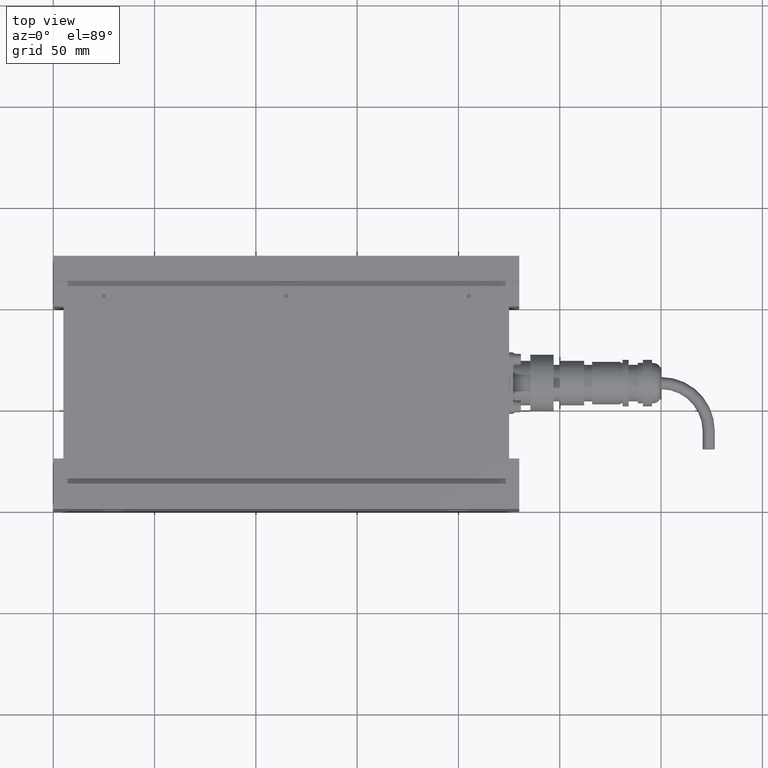
[diagram: clean part render]
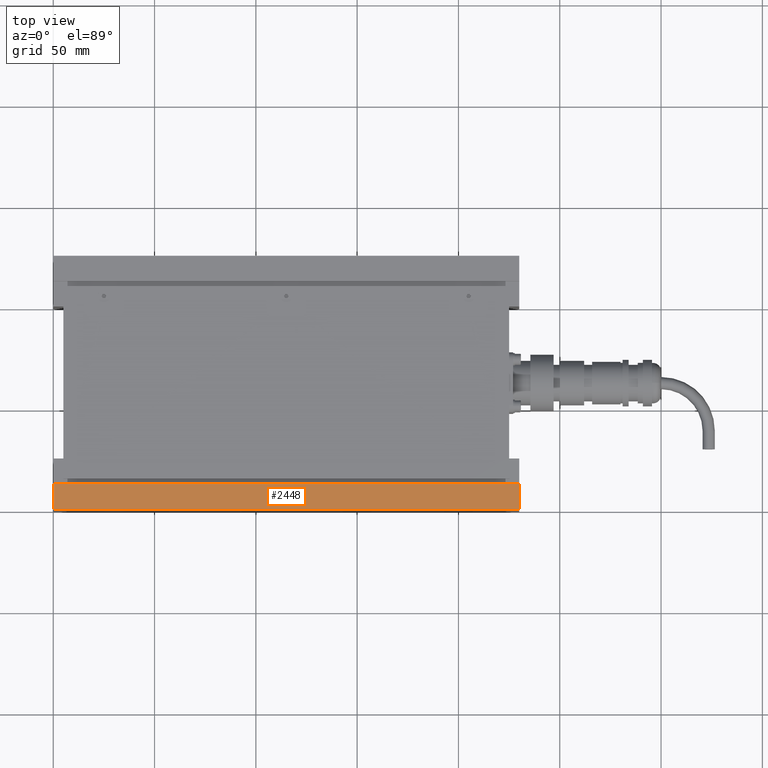
[diagram: same view with one face highlighted and labeled with its STEP entity id]
A machine part, top view. The second image highlights one B-rep face of the part: STEP entity #2448.
In plain terms, the highlighted planar face has unit normal (-0, 0, 1).
Its self-contained STEP definition (entity closure, byte-faithful):
#1949=CARTESIAN_POINT('',(115.0,-50.0,45.0));
#1950=VERTEX_POINT('',#1949);
#1957=CARTESIAN_POINT('',(115.0,-62.500000000000000,45.0));
#1958=VERTEX_POINT('',#1957);
#1959=CARTESIAN_POINT('',(115.0,-50.0,45.0));
#1960=DIRECTION('',(0.0,-1.0,0.0));
#1961=VECTOR('',#1960,12.500000000000000);
#1962=LINE('',#1959,#1961);
#1963=EDGE_CURVE('',#1950,#1958,#1962,.T.);
#2268=CARTESIAN_POINT('',(-115.0,-62.500000000000000,45.0));
#2269=VERTEX_POINT('',#2268);
#2276=CARTESIAN_POINT('',(-115.0,-50.0,45.0));
#2277=VERTEX_POINT('',#2276);
#2278=CARTESIAN_POINT('',(-115.0,-62.500000000000000,45.0));
#2279=DIRECTION('',(0.0,1.0,0.0));
#2280=VECTOR('',#2279,12.500000000000000);
#2281=LINE('',#2278,#2280);
#2282=EDGE_CURVE('',#2269,#2277,#2281,.T.);
#2390=CARTESIAN_POINT('',(115.0,-50.0,45.0));
#2391=DIRECTION('',(-1.0,0.0,0.0));
#2392=VECTOR('',#2391,230.0);
#2393=LINE('',#2390,#2392);
#2394=EDGE_CURVE('',#1950,#2277,#2393,.T.);
#2432=CARTESIAN_POINT('',(1.332268E-015,0.0,45.0));
#2433=DIRECTION('',(0.0,0.0,1.0));
#2434=DIRECTION('',(1.0,0.0,0.0));
#2435=AXIS2_PLACEMENT_3D('',#2432,#2433,#2434);
#2436=PLANE('',#2435);
#2437=ORIENTED_EDGE('',*,*,#2394,.T.);
#2438=ORIENTED_EDGE('',*,*,#2282,.F.);
#2439=CARTESIAN_POINT('',(115.0,-62.500000000000000,45.0));
#2440=DIRECTION('',(-1.0,0.0,0.0));
#2441=VECTOR('',#2440,230.0);
#2442=LINE('',#2439,#2441);
#2443=EDGE_CURVE('',#1958,#2269,#2442,.T.);
#2444=ORIENTED_EDGE('',*,*,#2443,.F.);
#2445=ORIENTED_EDGE('',*,*,#1963,.F.);
#2446=EDGE_LOOP('',(#2437,#2438,#2444,#2445));
#2447=FACE_OUTER_BOUND('',#2446,.T.);
#2448=ADVANCED_FACE('',(#2447),#2436,.T.);